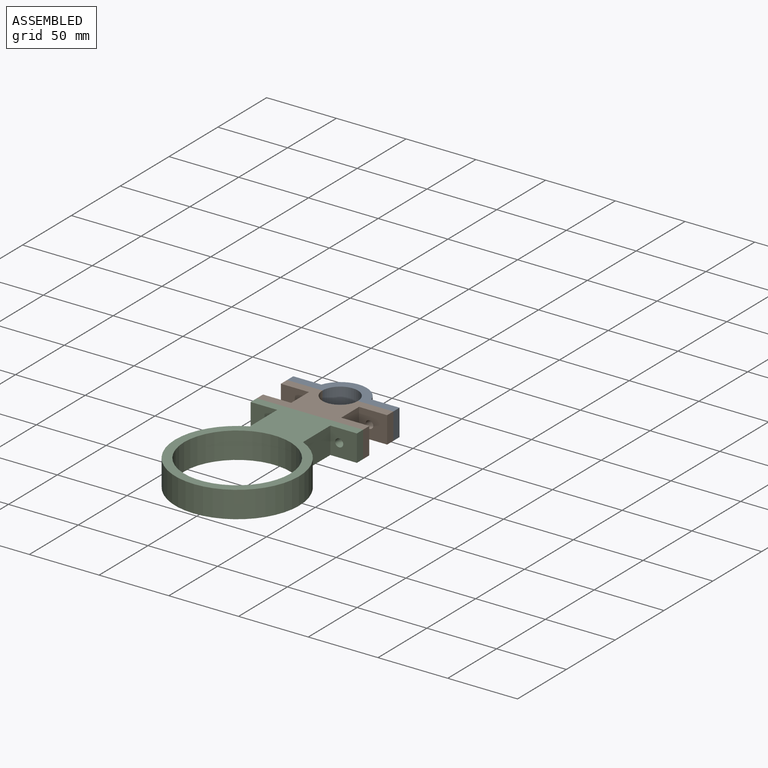
[diagram: assembled view]
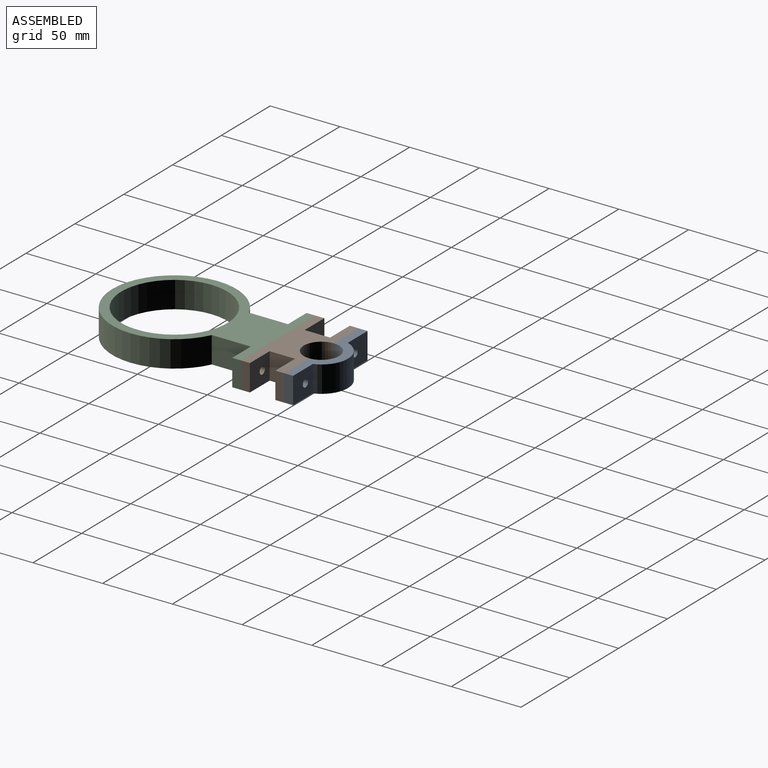
[diagram: assembled view, second angle]
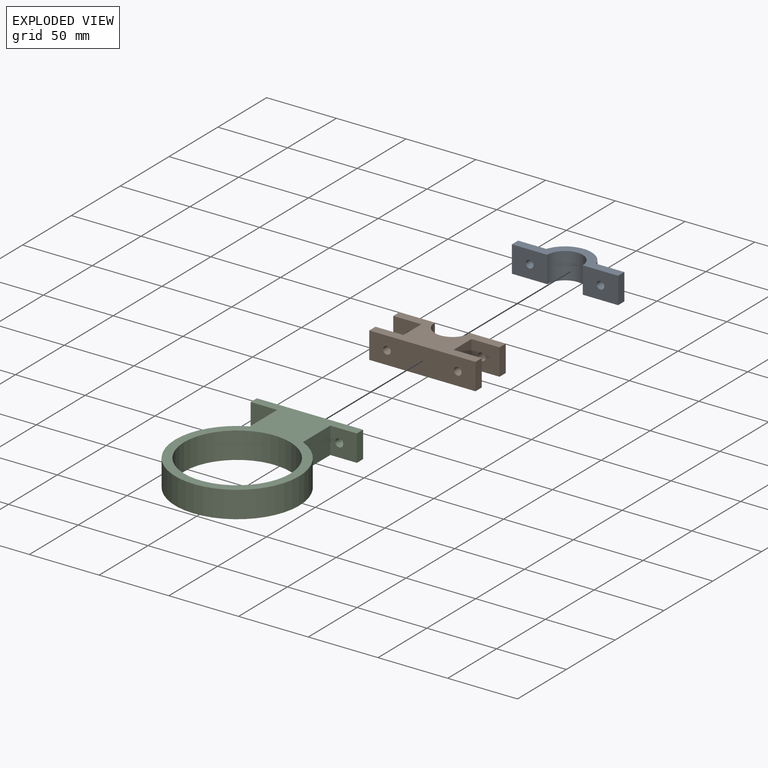
[diagram: exploded view]
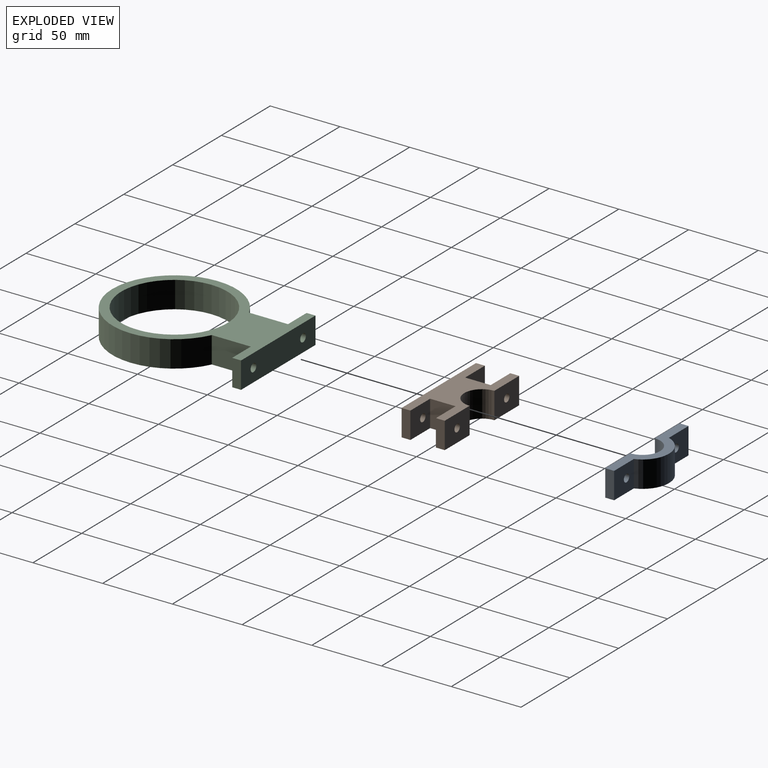
[diagram: exploded view, second angle]
ASSEMBLY  parts=3 mates=2
PART A: 12 faces, bbox 76.2x19.1x19.1 mm
  f0: plane 25.4x19.05mm, normal (0,-1,0), area 460.1mm2, adj f1,f7,f8,f9,f10
  f1: cylinder r=12.7mm len=25.4mm, axis (0,0,-1), area 760.1mm2, adj f0,f2,f8,f9
  f2: plane 25.4x19.05mm, normal (0,-1,0), area 460.1mm2, adj f1,f3,f8,f9,f11
  f3: plane 19.05x6.35mm, normal (1,0,0), area 121mm2, adj f2,f4,f8,f9
  f4: plane 20.14x19.05mm, normal (0,1,0), area 359.9mm2, adj f3,f5,f8,f9,f11
  f5: cylinder r=19.05mm len=35.92mm, axis (0,0,-1), area 893.4mm2, adj f4,f6,f8,f9
  f6: plane 20.14x19.05mm, normal (0,1,0), area 359.9mm2, adj f5,f7,f8,f9,f10
  f7: plane 19.05x6.35mm, normal (-1,0,0), area 121mm2, adj f0,f6,f8,f9
  f8: plane 76.2x19.05mm, normal (0,0,1), area 563.2mm2, adj f0,f1,f2,f3,f4,f5,f6,f7
  f9: plane 76.2x19.05mm, normal (0,0,-1), area 563.2mm2, adj f0,f1,f2,f3,f4,f5,f6,f7
  f10: cylinder r=2.75mm len=6.35mm, axis (0,-1,0), area 109.7mm2, adj f0,f6
  f11: cylinder r=2.75mm len=6.35mm, axis (0,-1,0), area 109.7mm2, adj f2,f4
PART B: 20 faces, bbox 76.2x31x19.1 mm
  f0: plane 25.4x19.05mm, normal (0,-1,0), area 460.1mm2, adj f1,f13,f14,f15,f16
  f1: cylinder r=12.7mm len=25.4mm, axis (0,0,-1), area 760.1mm2, adj f0,f2,f14,f15
  f2: plane 25.4x19.05mm, normal (0,-1,0), area 460.1mm2, adj f1,f3,f14,f15,f19
  f3: plane 19.05x6.35mm, normal (1,0,0), area 121mm2, adj f2,f4,f14,f15
  f4: plane 20.14x19.05mm, normal (0,1,0), area 359.9mm2, adj f3,f5,f14,f15,f19
  f5: plane 19.05x18.28mm, normal (1,0,0), area 348.2mm2, adj f4,f6,f14,f15
  f6: plane 20.14x19.05mm, normal (0,-1,0), area 359.9mm2, adj f5,f7,f14,f15,f18
  f7: plane 19.05x6.35mm, normal (1,0,0), area 121mm2, adj f6,f8,f14,f15
  f8: plane 76.2x19.05mm, normal (0,1,0), area 1404.1mm2, adj f7,f9,f14,f15,f17,f18
  f9: plane 19.05x6.35mm, normal (-1,0,0), area 121mm2, adj f8,f10,f14,f15
  f10: plane 20.14x19.05mm, normal (0,-1,0), area 359.9mm2, adj f9,f11,f14,f15,f17
  f11: plane 19.05x18.28mm, normal (-1,0,0), area 348.2mm2, adj f10,f12,f14,f15
  f12: plane 20.14x19.05mm, normal (0,1,0), area 359.9mm2, adj f11,f13,f14,f15,f16
  f13: plane 19.05x6.35mm, normal (-1,0,0), area 121mm2, adj f0,f12,f14,f15
  f14: plane 76.2x30.98mm, normal (0,0,1), area 1371mm2, adj f0,f1,f2,f3,f4,f5,f6,f7
  f15: plane 76.2x30.98mm, normal (0,0,-1), area 1371mm2, adj f0,f1,f2,f3,f4,f5,f6,f7
  f16: cylinder r=2.75mm len=6.35mm, axis (0,-1,0), area 109.7mm2, adj f0,f12
  f17: cylinder r=2.75mm len=6.35mm, axis (0,-1,0), area 109.7mm2, adj f8,f10
  f18: cylinder r=2.75mm len=6.35mm, axis (0,-1,0), area 109.7mm2, adj f6,f8
  f19: cylinder r=2.75mm len=6.35mm, axis (0,-1,0), area 109.7mm2, adj f2,f4
PART C: 13 faces, bbox 88.9x118.9x19.1 mm
  f0: cylinder r=44.45mm len=88.9mm, axis (0,0,-1), area 4570.3mm2, adj f1,f8,f9,f10
  f1: plane 27.98x19.05mm, normal (-1,0,0), area 533mm2, adj f0,f2,f9,f10
  f2: plane 19.05x19.05mm, normal (0,1,0), area 336.5mm2, adj f1,f3,f9,f10,f12
  f3: plane 19.05x6.35mm, normal (-1,0,0), area 121mm2, adj f2,f4,f9,f10
  f4: plane 76.2x19.05mm, normal (0,-1,0), area 1398.8mm2, adj f3,f5,f9,f10,f11,f12
  f5: plane 19.05x6.35mm, normal (1,0,0), area 121mm2, adj f4,f6,f9,f10
  f6: plane 19.05x19.05mm, normal (0,1,0), area 336.5mm2, adj f5,f8,f9,f10,f11
  f7: cylinder r=38.1mm len=76.2mm, axis (0,0,-1), area 4560.4mm2, adj f9,f10
  f8: plane 27.98x19.05mm, normal (1,0,0), area 533mm2, adj f0,f6,f9,f10
  f9: plane 118.94x88.9mm, normal (0,0,1), area 3086.6mm2, adj f0,f1,f2,f3,f4,f5,f6,f7
  f10: plane 118.94x88.9mm, normal (0,0,-1), area 3086.6mm2, adj f0,f1,f2,f3,f4,f5,f6,f7
  f11: cylinder r=2.9mm len=6.35mm, axis (0,-1,0), area 115.7mm2, adj f4,f6
  f12: cylinder r=2.9mm len=6.35mm, axis (0,-1,0), area 115.7mm2, adj f2,f4
PLACE A t=(0.02,-3.12,0.31)mm
PLACE B rot(axis=(0,0,-1),180deg) t=(0.02,-3.12,0.31)mm
PLACE C rot(axis=(0,0,-1),180deg) t=(-22.92,-64.13,0.31)mm
MATE planar C.f4 <-> B.f8  axis (0,1,0) through (0.02,-34.1,9.83)mm
MATE planar A.f10 <-> B.f18  axis (0,-1,0) through (-25.38,-3.12,9.83)mm
